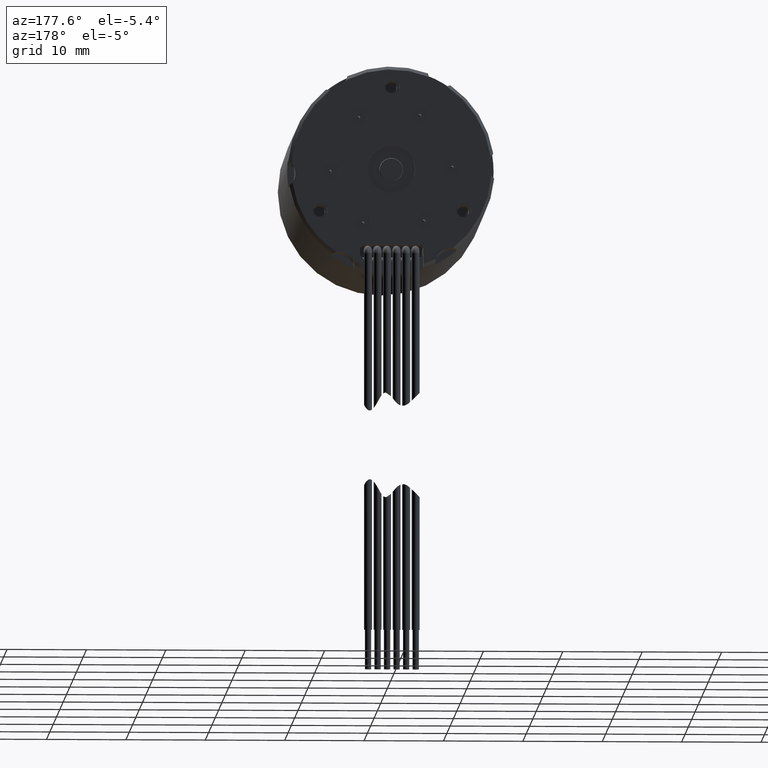
[diagram: clean part render]
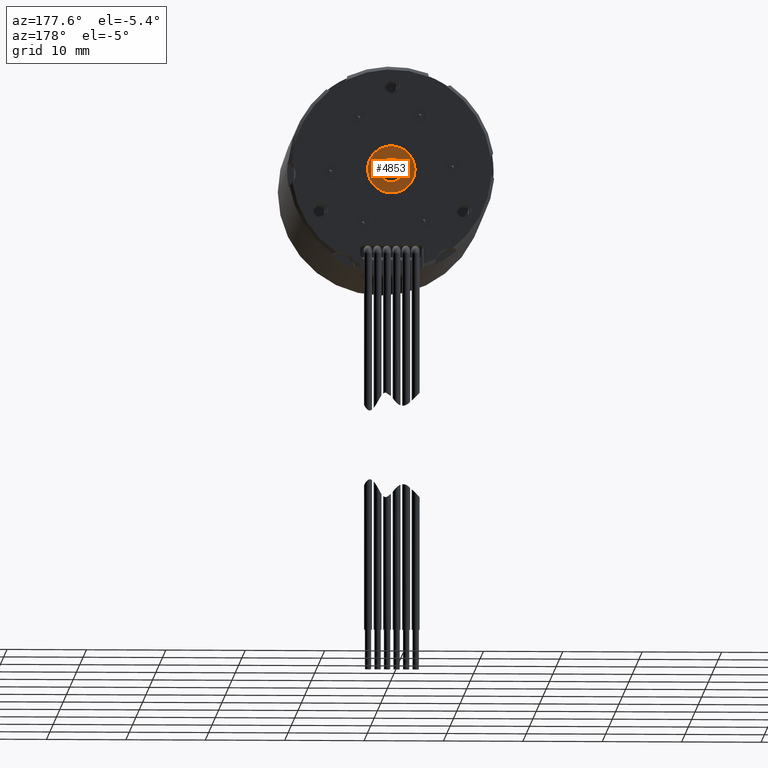
[diagram: same view with one face highlighted and labeled with its STEP entity id]
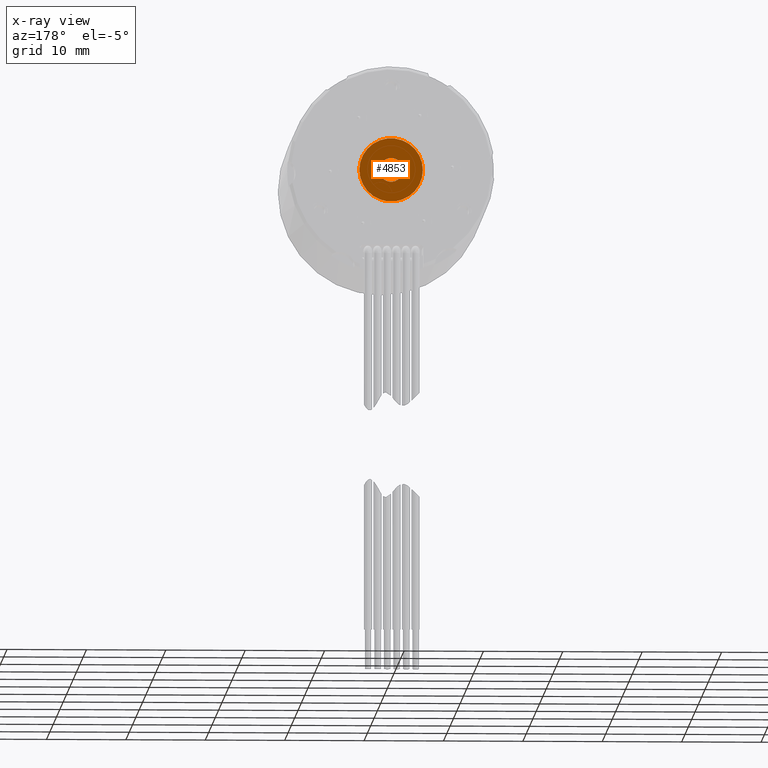
[diagram: x-ray of the same camera — body ghosted, the highlighted face saturated]
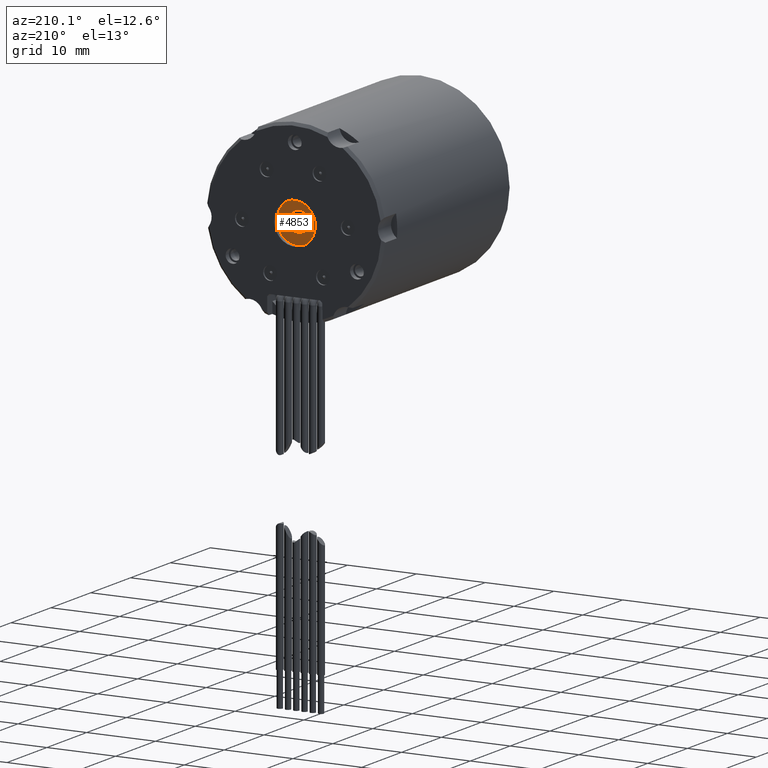
[diagram: same view with one face highlighted and labeled with its STEP entity id]
A machine part, auxiliary view. The second image highlights one B-rep face of the part: STEP entity #4853.
The next image is the same camera in x-ray: the body ghosted, the highlighted face saturated — about 0% of this face is hidden behind the body in this view.
A second angle (auxiliary view) of the same face is appended — the face is thin or edge-on in the first view.
In plain terms, the highlighted planar face has unit normal (0, 1, 0).
Its self-contained STEP definition (entity closure, byte-faithful):
#1499=CARTESIAN_POINT('',(0.E0,3.12E1,0.E0));
#1500=DIRECTION('',(0.E0,-1.E0,0.E0));
#1501=DIRECTION('',(-1.E0,0.E0,0.E0));
#1502=AXIS2_PLACEMENT_3D('',#1499,#1500,#1501);
#1530=CARTESIAN_POINT('',(0.E0,3.12E1,0.E0));
#1531=DIRECTION('',(0.E0,-1.E0,0.E0));
#1532=DIRECTION('',(1.E0,0.E0,3.589303183544E-10));
#1533=AXIS2_PLACEMENT_3D('',#1530,#1531,#1532);
#1599=CARTESIAN_POINT('',(0.E0,3.12E1,0.E0));
#1600=DIRECTION('',(0.E0,-1.E0,0.E0));
#1601=DIRECTION('',(-1.E0,0.E0,0.E0));
#1602=AXIS2_PLACEMENT_3D('',#1599,#1600,#1601);
#1604=CARTESIAN_POINT('',(0.E0,3.12E1,0.E0));
#1605=DIRECTION('',(0.E0,-1.E0,0.E0));
#1606=DIRECTION('',(1.E0,0.E0,0.E0));
#1607=AXIS2_PLACEMENT_3D('',#1604,#1605,#1606);
#2943=CARTESIAN_POINT('',(1.5E0,3.12E1,5.383954775315E-10));
#2944=CARTESIAN_POINT('',(-1.5E0,3.12E1,0.E0));
#2945=VERTEX_POINT('',#2943);
#2946=VERTEX_POINT('',#2944);
#2947=CARTESIAN_POINT('',(-4.E0,3.12E1,0.E0));
#2948=CARTESIAN_POINT('',(4.E0,3.12E1,0.E0));
#2949=VERTEX_POINT('',#2947);
#2950=VERTEX_POINT('',#2948);
#4837=CARTESIAN_POINT('',(0.E0,3.12E1,0.E0));
#4838=DIRECTION('',(0.E0,1.E0,0.E0));
#4839=DIRECTION('',(1.E0,0.E0,0.E0));
#4840=AXIS2_PLACEMENT_3D('',#4837,#4838,#4839);
#4841=PLANE('',#4840);
#4843=ORIENTED_EDGE('',*,*,#4842,.T.);
#4845=ORIENTED_EDGE('',*,*,#4844,.T.);
#4846=EDGE_LOOP('',(#4843,#4845));
#4847=FACE_OUTER_BOUND('',#4846,.F.);
#4849=ORIENTED_EDGE('',*,*,#4848,.F.);
#4850=ORIENTED_EDGE('',*,*,#4811,.F.);
#4851=EDGE_LOOP('',(#4849,#4850));
#4852=FACE_BOUND('',#4851,.F.);
#4853=ADVANCED_FACE('',(#4847,#4852),#4841,.T.);
#1503=CIRCLE('',#1502,1.5E0);
#1534=CIRCLE('',#1533,1.5E0);
#1603=CIRCLE('',#1602,4.E0);
#1608=CIRCLE('',#1607,4.E0);
#4811=EDGE_CURVE('',#2946,#2945,#1503,.T.);
#4842=EDGE_CURVE('',#2949,#2950,#1603,.T.);
#4844=EDGE_CURVE('',#2950,#2949,#1608,.T.);
#4848=EDGE_CURVE('',#2945,#2946,#1534,.T.);